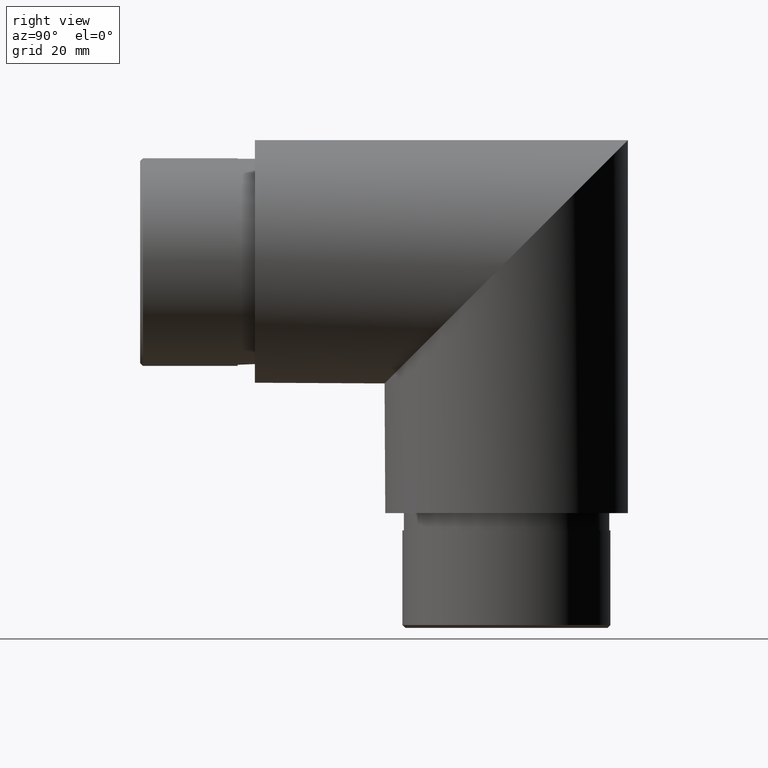
[diagram: clean part render]
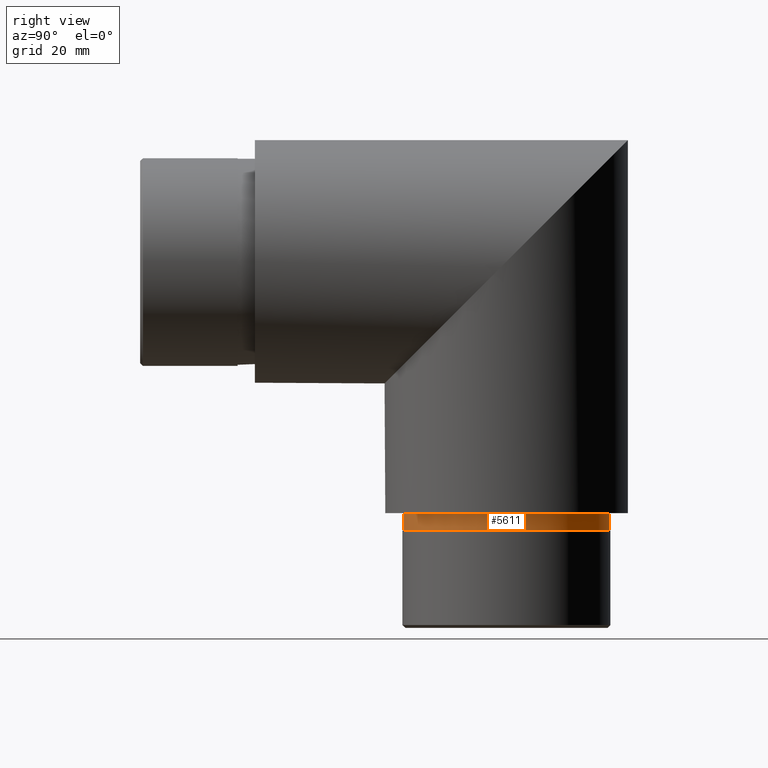
[diagram: same view with one face highlighted and labeled with its STEP entity id]
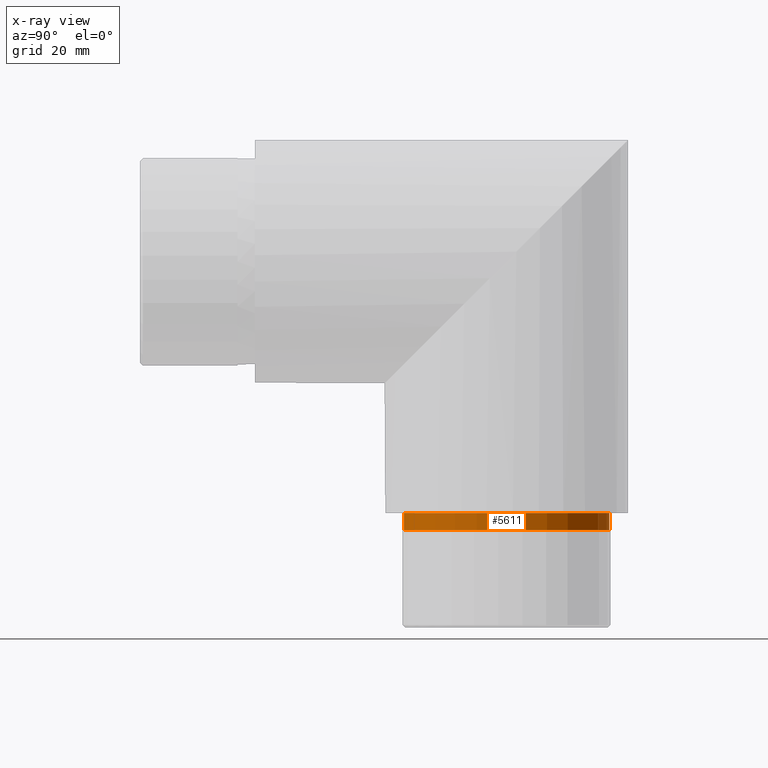
[diagram: x-ray of the same camera — body ghosted, the highlighted face saturated]
A machine part, right view. The second image highlights one B-rep face of the part: STEP entity #5611.
The next image is the same camera in x-ray: the body ghosted, the highlighted face saturated — about 0% of this face is hidden behind the body in this view.
In plain terms, the highlighted cylindrical surface (bore or boss wall) has radius 17.95 mm, axis along (-0, 0, 1).
Its self-contained STEP definition (entity closure, byte-faithful):
#522 = EDGE_CURVE ( 'NONE', #10060, #10060, #10289, .T. ) ;
#1680 = CARTESIAN_POINT ( 'NONE',  ( 0.0000000000000000000, 61.74999999999985100, -43.80000000000006100 ) ) ;
#1749 = ORIENTED_EDGE ( 'NONE', *, *, #522, .F. ) ;
#2422 = DIRECTION ( 'NONE',  ( -0.0000000000000000000, 3.441691376337984500E-015, 1.000000000000000000 ) ) ;
#2586 = DIRECTION ( 'NONE',  ( 0.0000000000000000000, 1.000000000000000000, -3.479111149591368100E-015 ) ) ;
#3302 = DIRECTION ( 'NONE',  ( 0.0000000000000000000, -1.000000000000000000, 3.479111149591368100E-015 ) ) ;
#4055 = FACE_OUTER_BOUND ( 'NONE', #6473, .T. ) ;
#4679 = AXIS2_PLACEMENT_3D ( 'NONE', #11076, #2422, #3302 ) ;
#5204 = DIRECTION ( 'NONE',  ( 0.0000000000000000000, -3.441691376337984500E-015, -1.000000000000000000 ) ) ;
#5611 = ADVANCED_FACE ( 'NONE', ( #4055, #12092 ), #6343, .T. ) ;
#6272 = CARTESIAN_POINT ( 'NONE',  ( 0.0000000000000000000, 43.79999999999985500, -43.79999999999999700 ) ) ;
#6343 = CYLINDRICAL_SURFACE ( 'NONE', #4679, 17.94999999999999900 ) ;
#6405 = CIRCLE ( 'NONE', #8396, 17.94999999999999900 ) ;
#6473 = EDGE_LOOP ( 'NONE', ( #1749 ) ) ;
#6481 = CARTESIAN_POINT ( 'NONE',  ( 0.0000000000000000000, 61.74999999999984400, -46.80000000000006100 ) ) ;
#6791 = EDGE_LOOP ( 'NONE', ( #11666 ) ) ;
#7355 = DIRECTION ( 'NONE',  ( 0.0000000000000000000, -3.441691376337984500E-015, -1.000000000000000000 ) ) ;
#7432 = AXIS2_PLACEMENT_3D ( 'NONE', #11165, #7355, #2586 ) ;
#8396 = AXIS2_PLACEMENT_3D ( 'NONE', #6272, #5204, #11989 ) ;
#10060 = VERTEX_POINT ( 'NONE', #6481 ) ;
#10100 = VERTEX_POINT ( 'NONE', #1680 ) ;
#10289 = CIRCLE ( 'NONE', #7432, 17.94999999999999900 ) ;
#10939 = EDGE_CURVE ( 'NONE', #10100, #10100, #6405, .T. ) ;
#11076 = CARTESIAN_POINT ( 'NONE',  ( 0.0000000000000000000, 43.79999999999984800, -46.80000000000000400 ) ) ;
#11165 = CARTESIAN_POINT ( 'NONE',  ( 0.0000000000000000000, 43.79999999999984800, -46.80000000000000400 ) ) ;
#11666 = ORIENTED_EDGE ( 'NONE', *, *, #10939, .T. ) ;
#11989 = DIRECTION ( 'NONE',  ( 0.0000000000000000000, 1.000000000000000000, -3.479111149591368100E-015 ) ) ;
#12092 = FACE_OUTER_BOUND ( 'NONE', #6791, .T. ) ;